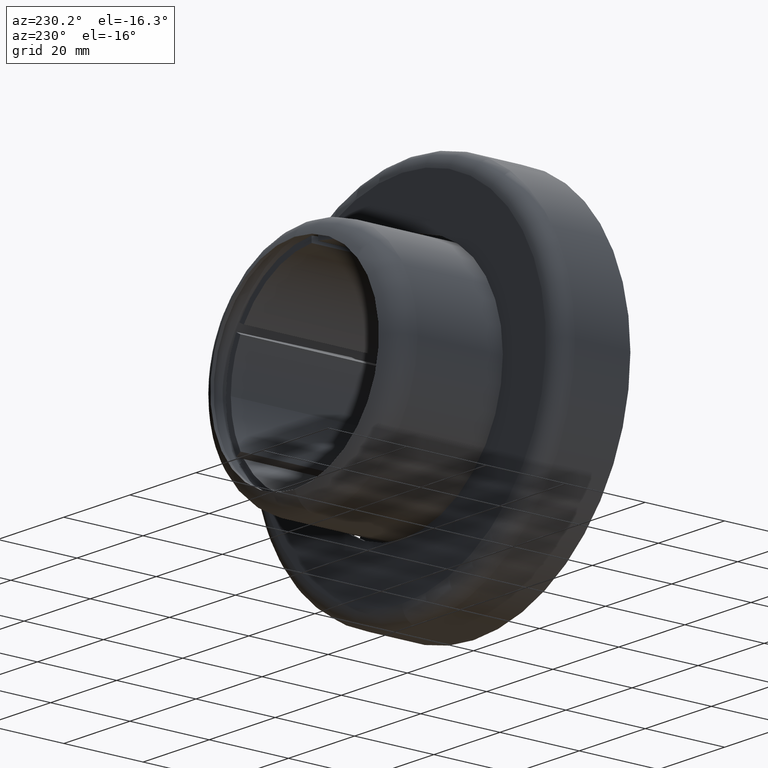
[diagram: clean part render]
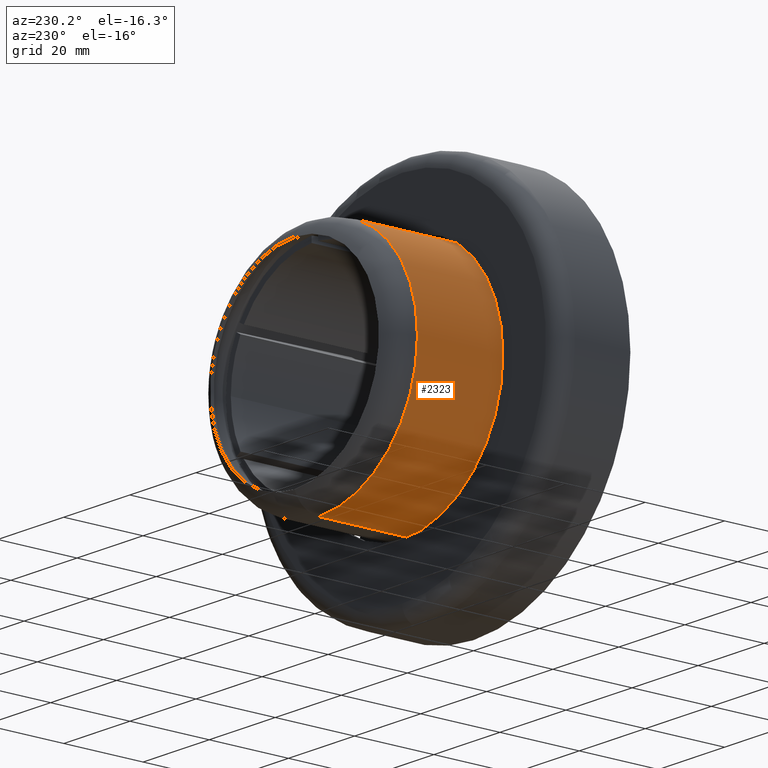
[diagram: same view with one face highlighted and labeled with its STEP entity id]
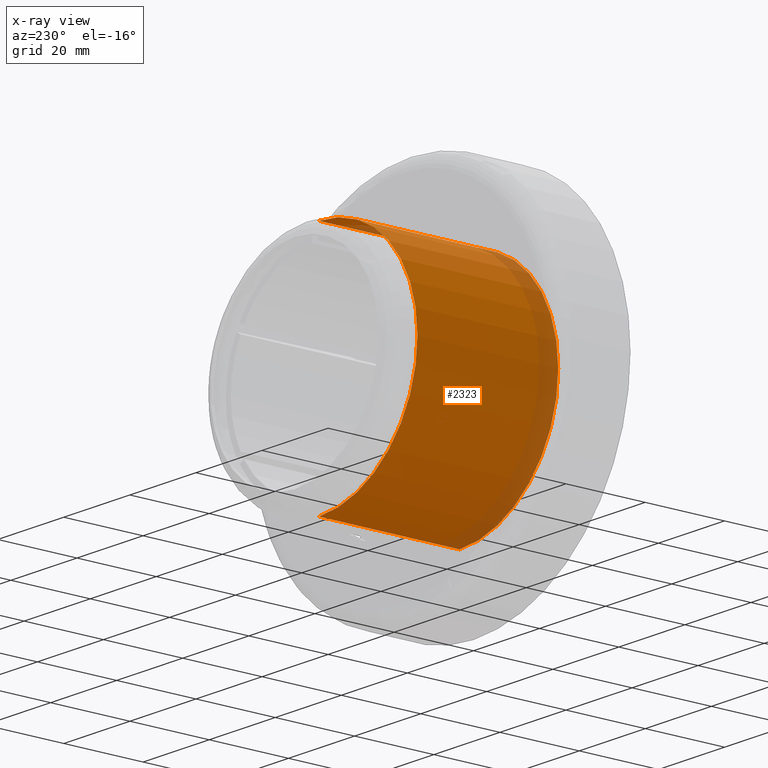
[diagram: x-ray of the same camera — body ghosted, the highlighted face saturated]
A machine part, auxiliary view. The second image highlights one B-rep face of the part: STEP entity #2323.
The next image is the same camera in x-ray: the body ghosted, the highlighted face saturated — about 14% of this face is hidden behind the body in this view.
In plain terms, the highlighted cylindrical surface (partial cylindrical patch) has radius 29.85 mm, axis along (-0, -1, -0).
Its self-contained STEP definition (entity closure, byte-faithful):
#27 = DIRECTION ( 'NONE',  ( 0.0000000000000000000, 0.0000000000000000000, -1.000000000000000000 ) ) ;
#31 = DIRECTION ( 'NONE',  ( -0.0000000000000000000, -1.000000000000000000, -0.0000000000000000000 ) ) ;
#41 = DIRECTION ( 'NONE',  ( -0.0000000000000000000, -1.000000000000000000, -0.0000000000000000000 ) ) ;
#160 = EDGE_CURVE ( 'NONE', #3438, #820, #2182, .T. ) ;
#489 = DIRECTION ( 'NONE',  ( 0.0000000000000000000, 0.0000000000000000000, -1.000000000000000000 ) ) ;
#820 = VERTEX_POINT ( 'NONE', #2626 ) ;
#848 = CARTESIAN_POINT ( 'NONE',  ( 0.0000000000000000000, 5.449678256205728700E-016, 0.0000000000000000000 ) ) ;
#939 = EDGE_CURVE ( 'NONE', #1885, #2753, #1684, .T. ) ;
#961 = VECTOR ( 'NONE', #1193, 1000.000000000000000 ) ;
#998 = LINE ( 'NONE', #3029, #2287 ) ;
#1062 = CYLINDRICAL_SURFACE ( 'NONE', #2885, 29.85000000000000100 ) ;
#1153 = DIRECTION ( 'NONE',  ( -0.0000000000000000000, -1.000000000000000000, -0.0000000000000000000 ) ) ;
#1193 = DIRECTION ( 'NONE',  ( -0.0000000000000000000, -1.000000000000000000, -0.0000000000000000000 ) ) ;
#1299 = LINE ( 'NONE', #3036, #961 ) ;
#1401 = EDGE_LOOP ( 'NONE', ( #1776, #2537, #1866, #2867 ) ) ;
#1555 = EDGE_CURVE ( 'NONE', #820, #2753, #998, .T. ) ;
#1684 = CIRCLE ( 'NONE', #3302, 29.85000000000000100 ) ;
#1763 = FACE_OUTER_BOUND ( 'NONE', #1401, .T. ) ;
#1776 = ORIENTED_EDGE ( 'NONE', *, *, #2979, .F. ) ;
#1866 = ORIENTED_EDGE ( 'NONE', *, *, #1555, .T. ) ;
#1885 = VERTEX_POINT ( 'NONE', #2418 ) ;
#2137 = CARTESIAN_POINT ( 'NONE',  ( 0.0000000000000000000, 0.0000000000000000000, 0.0000000000000000000 ) ) ;
#2182 = CIRCLE ( 'NONE', #2880, 29.84999999999999800 ) ;
#2287 = VECTOR ( 'NONE', #1153, 1000.000000000000000 ) ;
#2319 = DIRECTION ( 'NONE',  ( -0.0000000000000000000, -1.000000000000000000, -0.0000000000000000000 ) ) ;
#2323 = ADVANCED_FACE ( 'NONE', ( #1763 ), #1062, .T. ) ;
#2418 = CARTESIAN_POINT ( 'NONE',  ( 3.655570695454849500E-015, 5.449678256205728700E-016, 29.85000000000000100 ) ) ;
#2537 = ORIENTED_EDGE ( 'NONE', *, *, #160, .T. ) ;
#2586 = CARTESIAN_POINT ( 'NONE',  ( 0.0000000000000000000, 35.50000000000000700, 0.0000000000000000000 ) ) ;
#2626 = CARTESIAN_POINT ( 'NONE',  ( 0.0000000000000000000, 35.50000000000000700, -29.84999999999999800 ) ) ;
#2736 = CARTESIAN_POINT ( 'NONE',  ( 3.655570695454848700E-015, 35.50000000000000700, 29.84999999999999800 ) ) ;
#2753 = VERTEX_POINT ( 'NONE', #3161 ) ;
#2867 = ORIENTED_EDGE ( 'NONE', *, *, #939, .F. ) ;
#2880 = AXIS2_PLACEMENT_3D ( 'NONE', #2586, #2319, #489 ) ;
#2885 = AXIS2_PLACEMENT_3D ( 'NONE', #2137, #41, #27 ) ;
#2979 = EDGE_CURVE ( 'NONE', #3438, #1885, #1299, .T. ) ;
#3029 = CARTESIAN_POINT ( 'NONE',  ( 0.0000000000000000000, 0.0000000000000000000, -29.85000000000000100 ) ) ;
#3036 = CARTESIAN_POINT ( 'NONE',  ( 3.655570695454849500E-015, 0.0000000000000000000, 29.85000000000000100 ) ) ;
#3161 = CARTESIAN_POINT ( 'NONE',  ( 0.0000000000000000000, 5.449678256205728700E-016, -29.85000000000000100 ) ) ;
#3260 = DIRECTION ( 'NONE',  ( 0.0000000000000000000, 0.0000000000000000000, -1.000000000000000000 ) ) ;
#3302 = AXIS2_PLACEMENT_3D ( 'NONE', #848, #31, #3260 ) ;
#3438 = VERTEX_POINT ( 'NONE', #2736 ) ;